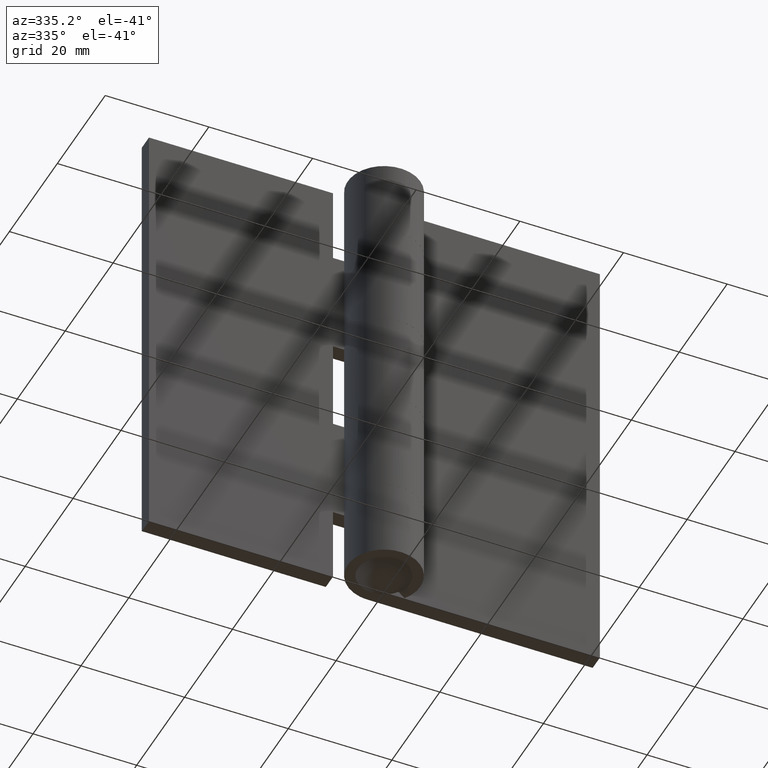
[diagram: clean part render]
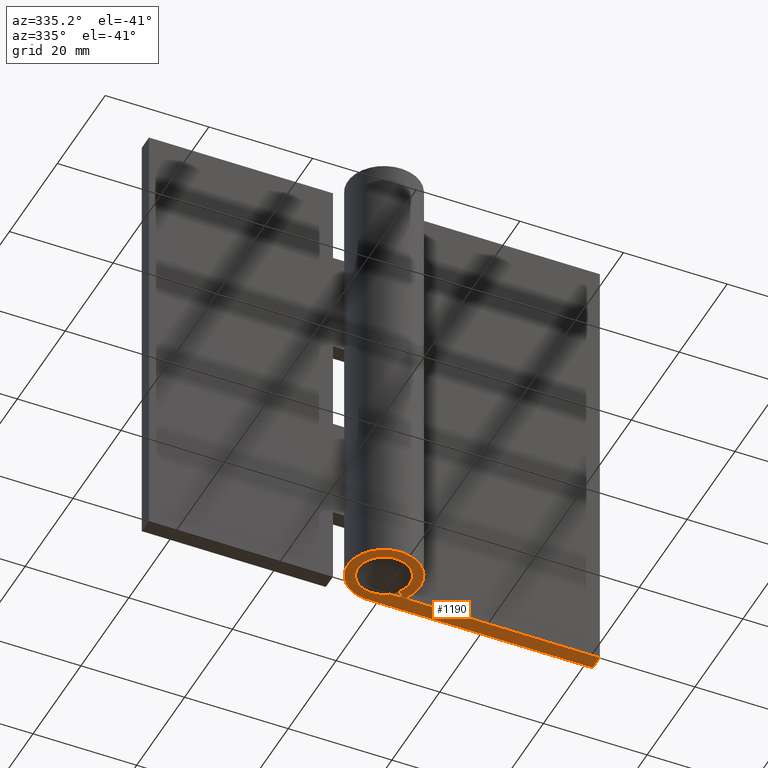
[diagram: same view with one face highlighted and labeled with its STEP entity id]
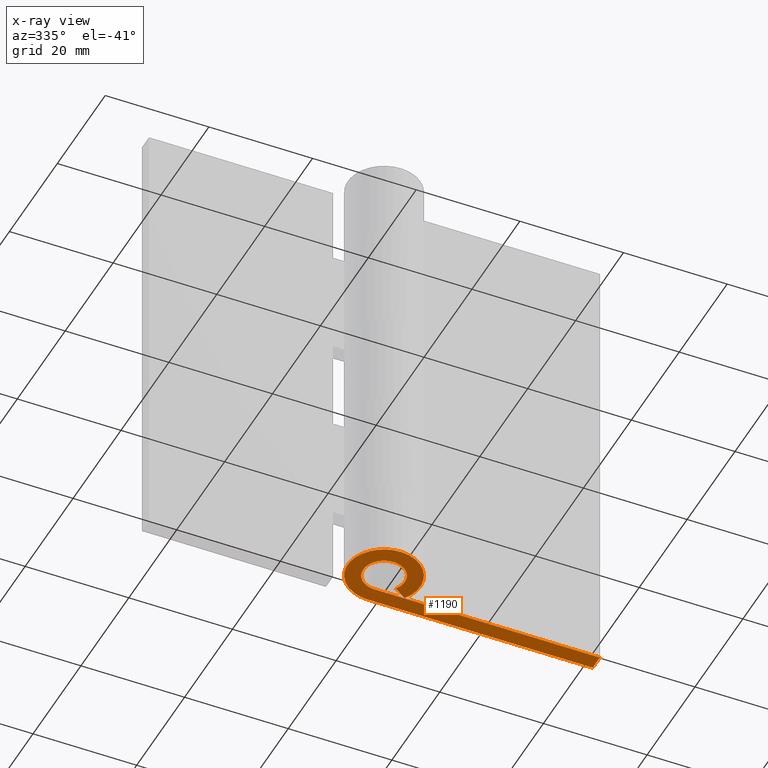
[diagram: x-ray of the same camera — body ghosted, the highlighted face saturated]
A machine part, auxiliary view. The second image highlights one B-rep face of the part: STEP entity #1190.
The next image is the same camera in x-ray: the body ghosted, the highlighted face saturated — about 0% of this face is hidden behind the body in this view.
In plain terms, the highlighted face is a freeform B-spline surface patch.
Its self-contained STEP definition (entity closure, byte-faithful):
#1113=CARTESIAN_POINT('',(-9.520567281299130,-7.691667069046072,0.0));
#1114=CARTESIAN_POINT('',(46.022385504022147,-7.691667069046072,0.0));
#1115=CARTESIAN_POINT('',(-9.520567281299130,7.698937222762449,0.0));
#1116=CARTESIAN_POINT('',(46.022385504022147,7.698937222762449,0.0));
#1117=B_SPLINE_SURFACE_WITH_KNOTS('',1,1,((#1113,#1115),(#1114,#1116)),.UNSPECIFIED.,.F.,.F.,.U.,(2,2),(2,2),(0.0,55.542952785321283),(0.0,15.390604291808520),.UNSPECIFIED.);
#1118=CARTESIAN_POINT('',(5.779057016503639,3.950000000000000,0.0));
#1119=VERTEX_POINT('',#1118);
#1120=CARTESIAN_POINT('',(0.0,7.0,0.0));
#1121=VERTEX_POINT('',#1120);
#1122=CARTESIAN_POINT('',(5.779057016503640,3.950000000000006,0.0));
#1123=CARTESIAN_POINT('',(8.870032947337565,-0.572259782513825,0.0));
#1124=CARTESIAN_POINT('',(5.223583395225030,-4.659847262854154,0.0));
#1125=CARTESIAN_POINT('',(1.577133843112500,-8.747434743194479,0.0));
#1126=CARTESIAN_POINT('',(-3.267261850540901,-6.190718859712502,0.0));
#1127=CARTESIAN_POINT('',(-8.111657544194310,-3.634002976230520,0.0));
#1128=CARTESIAN_POINT('',(-6.794668204481638,1.682998511884744,0.0));
#1129=CARTESIAN_POINT('',(-5.477678864768969,7.000000000000001,0.0));
#1130=CARTESIAN_POINT('',(0.0,7.0,0.0));
#1138=(BOUNDED_CURVE()B_SPLINE_CURVE(2,(#1122,#1123,#1124,#1125,#1126,#1127,#1128,#1129,#1130),.UNSPECIFIED.,.F.,.U.)B_SPLINE_CURVE_WITH_KNOTS((3,2,2,2,3),(0.0,0.250000000000000,0.500000000000000,0.750000000000000,1.0),.UNSPECIFIED.)CURVE()GEOMETRIC_REPRESENTATION_ITEM()RATIONAL_B_SPLINE_CURVE((1.0,0.787536779725454,1.0,0.787536779725454,1.0,0.787536779725454,1.0,0.787536779725454,1.0))REPRESENTATION_ITEM(''));
#1139=EDGE_CURVE('',#1119,#1121,#1138,.T.);
#1140=ORIENTED_EDGE('',*,*,#1139,.T.);
#1141=CARTESIAN_POINT('',(43.500000000000000,7.0,0.0));
#1142=VERTEX_POINT('',#1141);
#1143=CARTESIAN_POINT('',(0.0,7.0,0.0));
#1144=CARTESIAN_POINT('',(43.500000000000000,7.0,0.0));
#1145=QUASI_UNIFORM_CURVE('',1,(#1143,#1144),.UNSPECIFIED.,.F.,.U.);
#1146=EDGE_CURVE('',#1121,#1142,#1145,.T.);
#1147=ORIENTED_EDGE('',*,*,#1146,.T.);
#1148=CARTESIAN_POINT('',(43.500000000000000,4.0,0.0));
#1149=VERTEX_POINT('',#1148);
#1150=CARTESIAN_POINT('',(43.500000000000000,7.0,0.0));
#1151=CARTESIAN_POINT('',(43.500000000000000,4.0,0.0));
#1152=QUASI_UNIFORM_CURVE('',1,(#1150,#1151),.UNSPECIFIED.,.F.,.U.);
#1153=EDGE_CURVE('',#1142,#1149,#1152,.T.);
#1154=ORIENTED_EDGE('',*,*,#1153,.T.);
#1155=CARTESIAN_POINT('',(0.0,4.0,0.0));
#1156=VERTEX_POINT('',#1155);
#1157=CARTESIAN_POINT('',(43.500000000000000,4.0,0.0));
#1158=CARTESIAN_POINT('',(0.0,4.0,0.0));
#1159=QUASI_UNIFORM_CURVE('',1,(#1157,#1158),.UNSPECIFIED.,.F.,.U.);
#1160=EDGE_CURVE('',#1149,#1156,#1159,.T.);
#1161=ORIENTED_EDGE('',*,*,#1160,.T.);
#1162=CARTESIAN_POINT('',(3.302318295144940,2.257142857142855,0.0));
#1163=VERTEX_POINT('',#1162);
#1164=CARTESIAN_POINT('',(3.302318295144939,2.257142857142858,0.0));
#1165=CARTESIAN_POINT('',(5.068590255621464,-0.327005590007902,0.0));
#1166=CARTESIAN_POINT('',(2.984904797271446,-2.662769864488088,0.0));
#1167=CARTESIAN_POINT('',(0.901219338921428,-4.998534138968274,0.0));
#1168=CARTESIAN_POINT('',(-1.867006771737658,-3.537553634121429,0.0));
#1169=CARTESIAN_POINT('',(-4.635232882396749,-2.076573129274582,0.0));
#1170=CARTESIAN_POINT('',(-3.882667545418079,0.961713435362711,0.0));
#1171=CARTESIAN_POINT('',(-3.130102208439410,4.000000000000000,0.0));
#1172=CARTESIAN_POINT('',(0.0,4.0,0.0));
#1180=(BOUNDED_CURVE()B_SPLINE_CURVE(2,(#1164,#1165,#1166,#1167,#1168,#1169,#1170,#1171,#1172),.UNSPECIFIED.,.F.,.U.)B_SPLINE_CURVE_WITH_KNOTS((3,2,2,2,3),(0.0,0.250000000000000,0.500000000000000,0.750000000000000,1.0),.UNSPECIFIED.)CURVE()GEOMETRIC_REPRESENTATION_ITEM()RATIONAL_B_SPLINE_CURVE((1.0,0.787536779725454,1.0,0.787536779725454,1.0,0.787536779725454,1.0,0.787536779725454,1.0))REPRESENTATION_ITEM(''));
#1181=EDGE_CURVE('',#1163,#1156,#1180,.T.);
#1182=ORIENTED_EDGE('',*,*,#1181,.F.);
#1183=CARTESIAN_POINT('',(3.302318295144940,2.257142857142855,0.0));
#1184=CARTESIAN_POINT('',(5.779057016503639,3.950000000000000,0.0));
#1185=QUASI_UNIFORM_CURVE('',1,(#1183,#1184),.UNSPECIFIED.,.F.,.U.);
#1186=EDGE_CURVE('',#1163,#1119,#1185,.T.);
#1187=ORIENTED_EDGE('',*,*,#1186,.T.);
#1188=EDGE_LOOP('',(#1140,#1147,#1154,#1161,#1182,#1187));
#1189=FACE_OUTER_BOUND('',#1188,.T.);
#1190=ADVANCED_FACE('',(#1189),#1117,.F.);